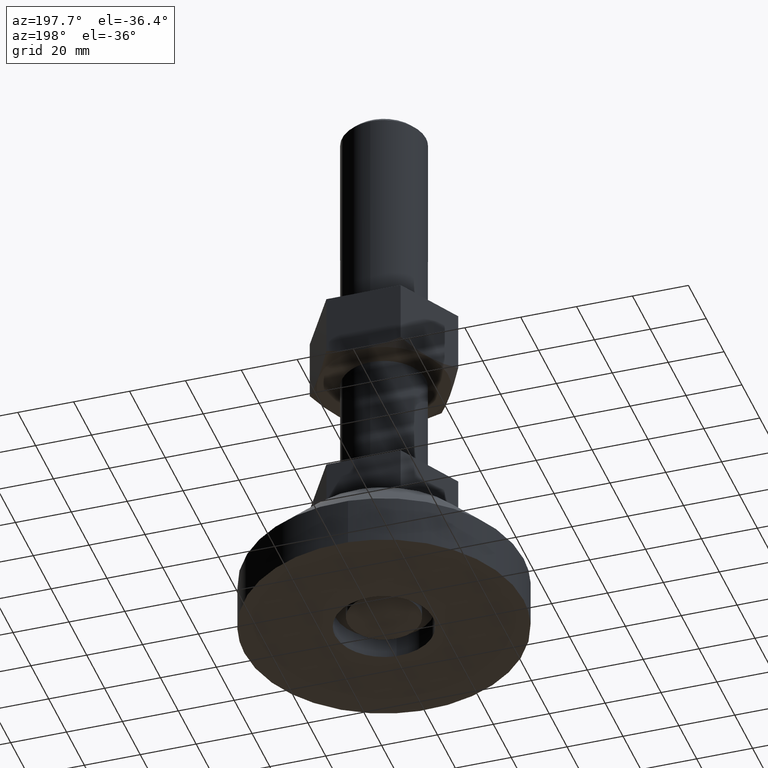
[diagram: clean part render]
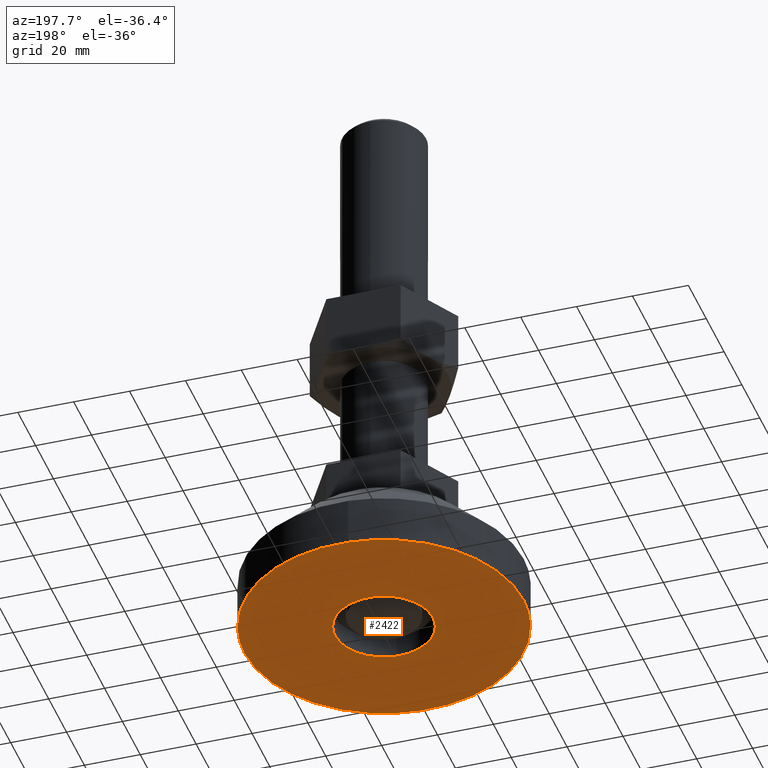
[diagram: same view with one face highlighted and labeled with its STEP entity id]
A machine part, auxiliary view. The second image highlights one B-rep face of the part: STEP entity #2422.
In plain terms, the highlighted face is a freeform B-spline surface patch.
Its self-contained STEP definition (entity closure, byte-faithful):
#2243=CARTESIAN_POINT('',(3.052364385264898,-49.906743749273353,-5.620504E-014));
#2244=VERTEX_POINT('',#2243);
#2250=CARTESIAN_POINT('',(50.000000000000220,0.0,0.0));
#2251=VERTEX_POINT('',#2250);
#2252=CARTESIAN_POINT('',(50.000000000000220,0.0,0.0));
#2253=CARTESIAN_POINT('',(49.999999999999034,-47.035362445741569,-2.810252E-014));
#2254=CARTESIAN_POINT('',(3.052364385264898,-49.906743749273353,-5.620504E-014));
#2262=(BOUNDED_CURVE()B_SPLINE_CURVE(2,(#2252,#2253,#2254),.UNSPECIFIED.,.F.,.U.)B_SPLINE_CURVE_WITH_KNOTS((3,3),(0.500000000000000,0.739333178644811),.UNSPECIFIED.)CURVE()GEOMETRIC_REPRESENTATION_ITEM()RATIONAL_B_SPLINE_CURVE((1.0,0.719603739751465,0.976072505466126))REPRESENTATION_ITEM(''));
#2263=EDGE_CURVE('',#2251,#2244,#2262,.T.);
#2265=CARTESIAN_POINT('',(-3.052364385264470,49.906743749273353,-5.620504E-014));
#2266=VERTEX_POINT('',#2265);
#2267=CARTESIAN_POINT('',(-3.052364385264470,49.906743749273353,-5.620504E-014));
#2268=CARTESIAN_POINT('',(-1.527606781440586,49.999999999961318,-5.539736E-014));
#2269=CARTESIAN_POINT('',(2.537134E-012,49.999999999961922,-5.453876E-014));
#2270=CARTESIAN_POINT('',(50.000000000001343,49.999999999981540,-2.643624E-014));
#2271=CARTESIAN_POINT('',(50.000000000000220,0.0,0.0));
#2279=(BOUNDED_CURVE()B_SPLINE_CURVE(2,(#2267,#2268,#2269,#2270,#2271),.UNSPECIFIED.,.F.,.U.)B_SPLINE_CURVE_WITH_KNOTS((3,2,3),(0.239333178644811,0.250000000000000,0.500000000000000),.UNSPECIFIED.)CURVE()GEOMETRIC_REPRESENTATION_ITEM()RATIONAL_B_SPLINE_CURVE((0.976072505466126,0.987503041435082,1.0,0.707106781186547,1.0))REPRESENTATION_ITEM(''));
#2280=EDGE_CURVE('',#2266,#2251,#2279,.T.);
#2310=CARTESIAN_POINT('',(-49.999999999999787,0.0,-5.684342E-014));
#2311=VERTEX_POINT('',#2310);
#2312=CARTESIAN_POINT('',(-49.999999999999787,0.0,-5.684342E-014));
#2313=CARTESIAN_POINT('',(-49.999999999998586,47.035362445741569,-5.652423E-014));
#2314=CARTESIAN_POINT('',(-3.052364385264470,49.906743749273353,-5.620504E-014));
#2322=(BOUNDED_CURVE()B_SPLINE_CURVE(2,(#2312,#2313,#2314),.UNSPECIFIED.,.F.,.U.)B_SPLINE_CURVE_WITH_KNOTS((3,3),(0.0,0.239333178644811),.UNSPECIFIED.)CURVE()GEOMETRIC_REPRESENTATION_ITEM()RATIONAL_B_SPLINE_CURVE((1.0,0.719603739751465,0.976072505466126))REPRESENTATION_ITEM(''));
#2323=EDGE_CURVE('',#2311,#2266,#2322,.T.);
#2325=CARTESIAN_POINT('',(3.052364385264898,-49.906743749273353,-5.620504E-014));
#2326=CARTESIAN_POINT('',(1.527606781441013,-49.999999999961318,-5.621421E-014));
#2327=CARTESIAN_POINT('',(-2.109515E-012,-49.999999999961922,-5.622397E-014));
#2328=CARTESIAN_POINT('',(-50.000000000000909,-49.999999999981540,-5.654316E-014));
#2329=CARTESIAN_POINT('',(-49.999999999999787,0.0,-5.684342E-014));
#2337=(BOUNDED_CURVE()B_SPLINE_CURVE(2,(#2325,#2326,#2327,#2328,#2329),.UNSPECIFIED.,.F.,.U.)B_SPLINE_CURVE_WITH_KNOTS((3,2,3),(0.739333178644811,0.750000000000000,1.0),.UNSPECIFIED.)CURVE()GEOMETRIC_REPRESENTATION_ITEM()RATIONAL_B_SPLINE_CURVE((0.976072505466126,0.987503041435082,1.0,0.707106781186547,1.0))REPRESENTATION_ITEM(''));
#2338=EDGE_CURVE('',#2244,#2311,#2337,.T.);
#2345=CARTESIAN_POINT('',(54.994999806180822,-54.993769365459627,-2.842171E-014));
#2346=CARTESIAN_POINT('',(-54.995002488389403,-54.993769365459627,-2.842171E-014));
#2347=CARTESIAN_POINT('',(54.994999806180822,54.993767577320291,-2.842171E-014));
#2348=CARTESIAN_POINT('',(-54.995002488389389,54.993767577320291,-2.842171E-014));
#2349=B_SPLINE_SURFACE_WITH_KNOTS('',1,1,((#2345,#2347),(#2346,#2348)),.UNSPECIFIED.,.F.,.F.,.U.,(2,2),(2,2),(0.0,109.990002294570200),(0.0,109.987536942779900),.UNSPECIFIED.);
#2350=ORIENTED_EDGE('',*,*,#2323,.T.);
#2351=ORIENTED_EDGE('',*,*,#2280,.T.);
#2352=ORIENTED_EDGE('',*,*,#2263,.T.);
#2353=ORIENTED_EDGE('',*,*,#2338,.T.);
#2354=EDGE_LOOP('',(#2350,#2351,#2352,#2353));
#2355=FACE_OUTER_BOUND('',#2354,.T.);
#2356=CARTESIAN_POINT('',(-17.499999999999901,-1.705303E-013,0.0));
#2357=VERTEX_POINT('',#2356);
#2358=CARTESIAN_POINT('',(-1.068333760608158,17.467359931474821,5.220205E-013));
#2359=VERTEX_POINT('',#2358);
#2360=CARTESIAN_POINT('',(-17.499999999999901,-1.705303E-013,0.0));
#2361=CARTESIAN_POINT('',(-17.499999999999691,16.462370977483253,3.100421E-013));
#2362=CARTESIAN_POINT('',(-1.068333760608159,17.467359931474814,5.220205E-013));
#2370=(BOUNDED_CURVE()B_SPLINE_CURVE(2,(#2360,#2361,#2362),.UNSPECIFIED.,.F.,.U.)B_SPLINE_CURVE_WITH_KNOTS((3,3),(0.500000000000000,0.739333117145177),.UNSPECIFIED.)CURVE()GEOMETRIC_REPRESENTATION_ITEM()RATIONAL_B_SPLINE_CURVE((1.0,0.719603811802768,0.976072373660491))REPRESENTATION_ITEM(''));
#2371=EDGE_CURVE('',#2357,#2359,#2370,.T.);
#2372=ORIENTED_EDGE('',*,*,#2371,.F.);
#2373=CARTESIAN_POINT('',(1.068333760608356,-17.467359931475158,5.221240E-013));
#2374=VERTEX_POINT('',#2373);
#2375=CARTESIAN_POINT('',(1.068333760608356,-17.467359931475155,5.221240E-013));
#2376=CARTESIAN_POINT('',(0.534665495115297,-17.499999999993236,5.146209E-013));
#2377=CARTESIAN_POINT('',(-3.204590E-013,-17.499999999993339,5.066448E-013));
#2378=CARTESIAN_POINT('',(-17.500000000000110,-17.499999999996856,2.455828E-013));
#2379=CARTESIAN_POINT('',(-17.499999999999901,-1.705303E-013,0.0));
#2387=(BOUNDED_CURVE()B_SPLINE_CURVE(2,(#2375,#2376,#2377,#2378,#2379),.UNSPECIFIED.,.F.,.U.)B_SPLINE_CURVE_WITH_KNOTS((3,2,3),(0.239333117145177,0.250000000000000,0.500000000000000),.UNSPECIFIED.)CURVE()GEOMETRIC_REPRESENTATION_ITEM()RATIONAL_B_SPLINE_CURVE((0.976072373660491,0.987502969383780,1.0,0.707106781186548,1.0))REPRESENTATION_ITEM(''));
#2388=EDGE_CURVE('',#2374,#2357,#2387,.T.);
#2389=ORIENTED_EDGE('',*,*,#2388,.F.);
#2390=CARTESIAN_POINT('',(17.500000000000099,-1.705303E-013,1.110223E-013));
#2391=VERTEX_POINT('',#2390);
#2392=CARTESIAN_POINT('',(17.500000000000099,-1.705303E-013,1.110223E-013));
#2393=CARTESIAN_POINT('',(17.499999999999886,-16.462370977483584,3.165732E-013));
#2394=CARTESIAN_POINT('',(1.068333760608356,-17.467359931475155,5.221240E-013));
#2402=(BOUNDED_CURVE()B_SPLINE_CURVE(2,(#2392,#2393,#2394),.UNSPECIFIED.,.F.,.U.)B_SPLINE_CURVE_WITH_KNOTS((3,3),(0.0,0.239333117145177),.UNSPECIFIED.)CURVE()GEOMETRIC_REPRESENTATION_ITEM()RATIONAL_B_SPLINE_CURVE((1.0,0.719603811802768,0.976072373660491))REPRESENTATION_ITEM(''));
#2403=EDGE_CURVE('',#2391,#2374,#2402,.T.);
#2404=ORIENTED_EDGE('',*,*,#2403,.F.);
#2405=CARTESIAN_POINT('',(-1.068333760608159,17.467359931474814,5.220205E-013));
#2406=CARTESIAN_POINT('',(-0.534665495115099,17.499999999992891,5.163184E-013));
#2407=CARTESIAN_POINT('',(5.181182E-013,17.499999999993001,5.100367E-013));
#2408=CARTESIAN_POINT('',(17.500000000000309,17.499999999996518,3.044341E-013));
#2409=CARTESIAN_POINT('',(17.500000000000099,-1.705303E-013,1.110223E-013));
#2417=(BOUNDED_CURVE()B_SPLINE_CURVE(2,(#2405,#2406,#2407,#2408,#2409),.UNSPECIFIED.,.F.,.U.)B_SPLINE_CURVE_WITH_KNOTS((3,2,3),(0.739333117145177,0.750000000000000,1.0),.UNSPECIFIED.)CURVE()GEOMETRIC_REPRESENTATION_ITEM()RATIONAL_B_SPLINE_CURVE((0.976072373660491,0.987502969383780,1.0,0.707106781186548,1.0))REPRESENTATION_ITEM(''));
#2418=EDGE_CURVE('',#2359,#2391,#2417,.T.);
#2419=ORIENTED_EDGE('',*,*,#2418,.F.);
#2420=EDGE_LOOP('',(#2372,#2389,#2404,#2419));
#2421=FACE_BOUND('',#2420,.T.);
#2422=ADVANCED_FACE('',(#2355,#2421),#2349,.T.);